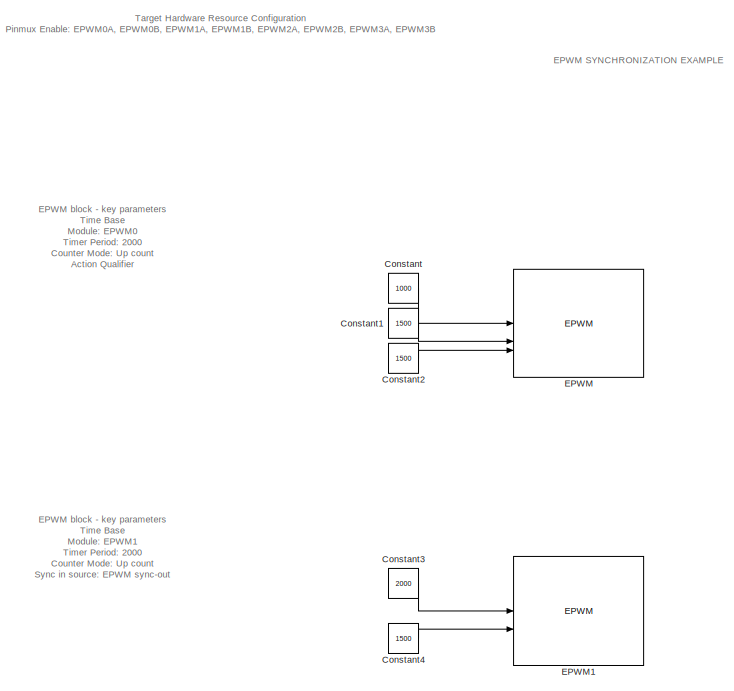
[diagram: root canvas - part 1/2, left side, full height]
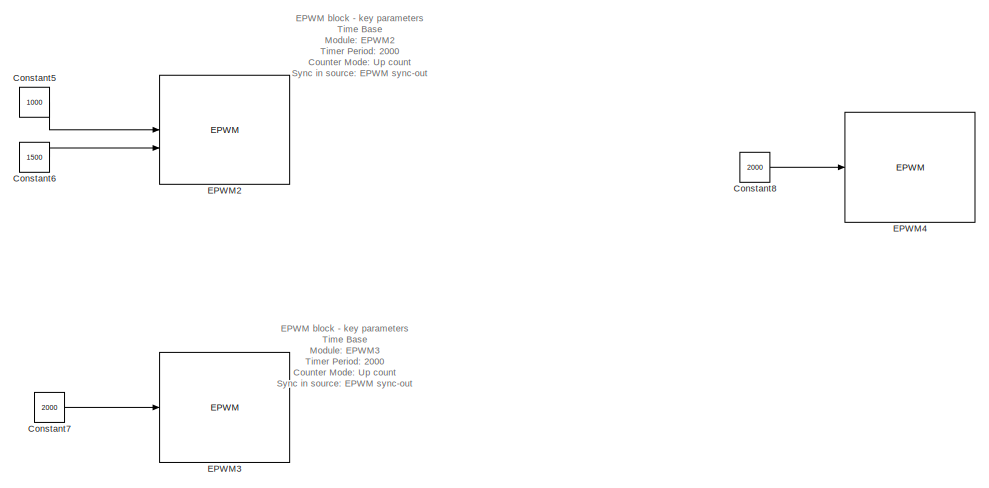
[diagram: root canvas - part 2/2, middle right region]
MODEL slx_69f9df3c9524
KIND model
CONFIG AbsTol = auto
CONFIG EnableMultiTasking = off
CONFIG FixedStep = auto
CONFIG MaxStep = auto
CONFIG MinStep = auto
CONFIG RelTol = 1e-3
CONFIG SampleTimeConstraint = Unconstrained
CONFIG SolverName = FixedStepAuto
CONFIG StartTime = 0.0
CONFIG StopTime = 10.0
BLOCK [Constant] Constant
  Value = 1000
BLOCK [Constant] Constant1
  Value = 1500
BLOCK [Constant] Constant2
  Value = 1500
BLOCK [Constant] Constant3
  Value = 2000
BLOCK [Constant] Constant4
  Value = 1500
BLOCK [Constant] Constant5
  Value = 1000
BLOCK [Constant] Constant6
  Value = 1500
BLOCK [Constant] Constant7
  Value = 2000
BLOCK [Constant] Constant8
  Value = 2000
BLOCK [Reference] EPWM  REF=peripheral_library_blocks_am261x/EPWM
  SourceBlock = peripheral_library_blocks_am261x/EPWM
  SourceType = EPWM_AM261X
BLOCK [Reference] EPWM1  REF=peripheral_library_blocks_am261x/EPWM
  SourceBlock = peripheral_library_blocks_am261x/EPWM
  SourceType = EPWM_AM261X
BLOCK [Reference] EPWM2  REF=peripheral_library_blocks_am261x/EPWM
  SourceBlock = peripheral_library_blocks_am261x/EPWM
  SourceType = EPWM_AM261X
BLOCK [Reference] EPWM3  REF=peripheral_library_blocks_am261x/EPWM
  SourceBlock = peripheral_library_blocks_am261x/EPWM
  SourceType = EPWM_AM261X
BLOCK [Reference] EPWM4  REF=peripheral_library_blocks_am261x/EPWM
  SourceBlock = peripheral_library_blocks_am261x/EPWM
  SourceType = EPWM_AM261X
ANNOTATION (root): EPWM block - key parameters Time Base Module: EPWM0 Timer Period: 2000 Counter Mode: Up count Action Qualifier A when CTR==Zero: Set high A when CTR==CMPAU: Set low
ANNOTATION (root): EPWM block - key parameters Time Base Module: EPWM1 Timer Period: 2000 Counter Mode: Up count Sync in source: EPWM sync-out Phase Shift Value: 300 Action Qualifier A when CTR==Zero: Set high A when CTR==CMPAU: Set low
ANNOTATION (root): EPWM block - key parameters Time Base Module: EPWM2 Timer Period: 2000 Counter Mode: Up count Sync in source: EPWM sync-out Phase Shift Value: 600 Action Qualifier A when CTR==Zero: Set high A when CTR==CMPAU: Set low
ANNOTATION (root): EPWM block - key parameters Time Base Module: EPWM3 Timer Period: 2000 Counter Mode: Up count Sync in source: EPWM sync-out Phase Shift Value: 900 Action Qualifier A when CTR==Zero: Set high A when CTR==CMPAU: Set low
ANNOTATION (root): Target Hardware Resource Configuration Pinmux Enable: EPWM0A, EPWM0B, EPWM1A, EPWM1B, EPWM2A, EPWM2B, EPWM3A, EPWM3B
ANNOTATION (root): EPWM SYNCHRONIZATION EXAMPLE
LINE Constant1:1 -> EPWM:2
LINE Constant2:1 -> EPWM:3
LINE Constant3:1 -> EPWM1:1
LINE Constant4:1 -> EPWM1:2
LINE Constant5:1 -> EPWM2:1
LINE Constant6:1 -> EPWM2:2
LINE Constant7:1 -> EPWM3:1
LINE Constant8:1 -> EPWM4:1
LINE Constant:1 -> EPWM:1
